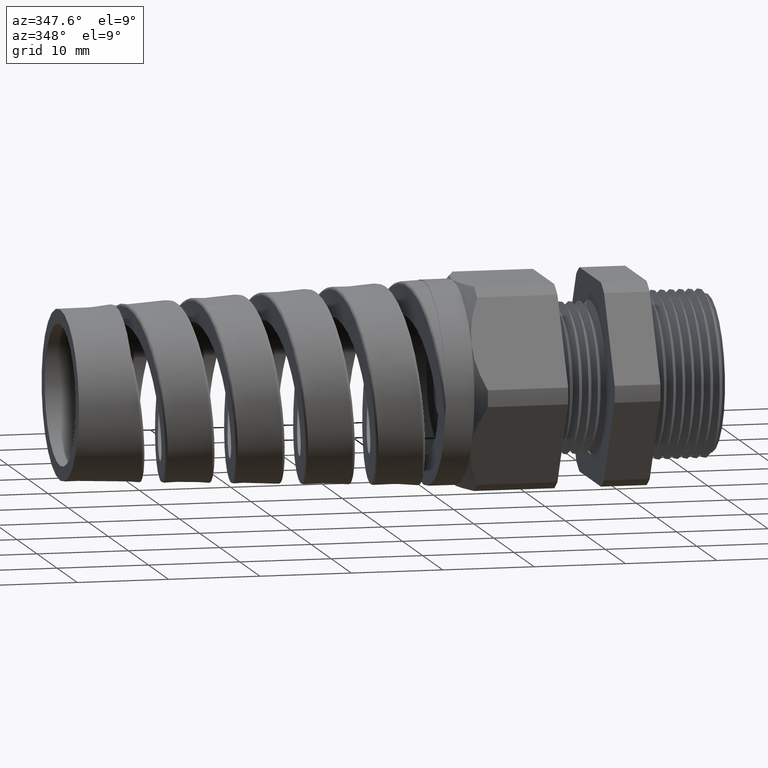
[diagram: clean part render]
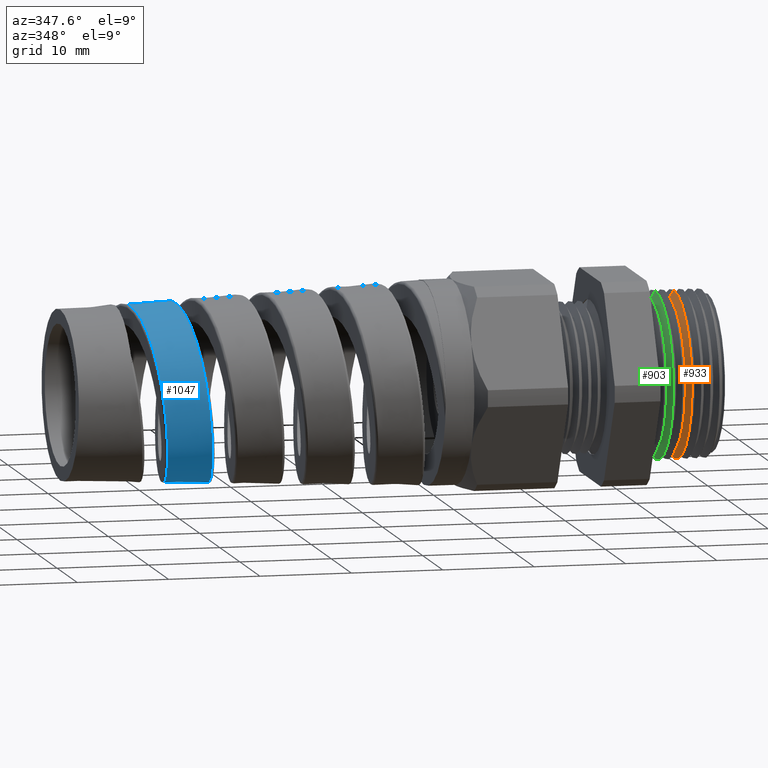
[diagram: same view with three faces highlighted in distinct colors, each labeled with its STEP entity id]
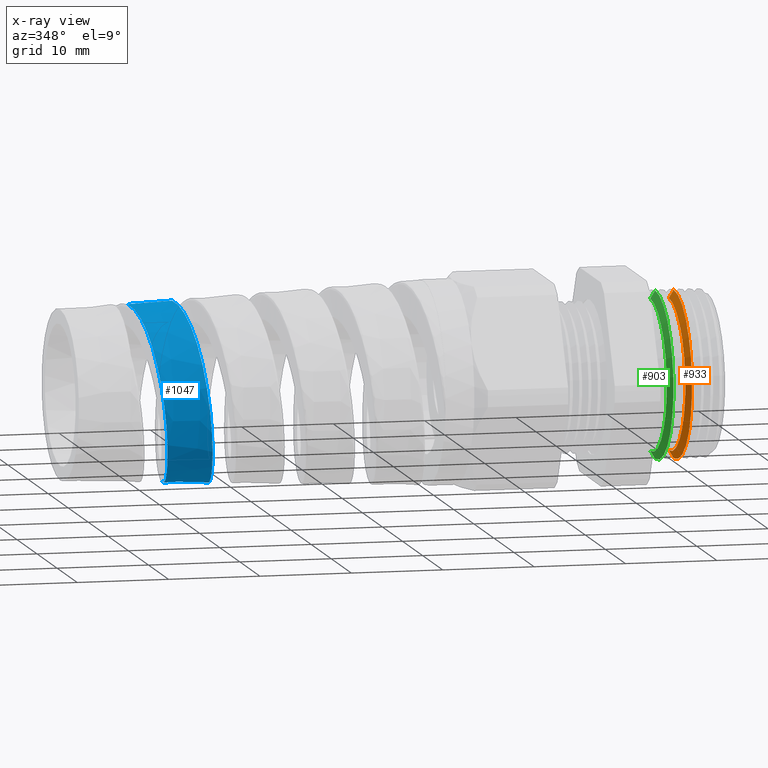
[diagram: x-ray of the same camera — body ghosted, the three highlighted faces saturated]
A machine part, auxiliary view with three faces highlighted in distinct colors.
The next image is the same camera in x-ray (body ghosted, the three faces saturated) — at least one of them is partly hidden behind the body in this view.
Their STEP definitions:

[orange] entity #933 — the highlighted conical surface has half-angle 58.5 deg.
#607 = VERTEX_POINT ( 'NONE', #2376 ) ;
#660 = EDGE_CURVE ( 'NONE', #9517, #607, #2317, .T. ) ;
#661 = VERTEX_POINT ( 'NONE', #2313 ) ;
#662 = EDGE_CURVE ( 'NONE', #661, #9642, #2312, .T. ) ;
#933 = ADVANCED_FACE ( 'NONE', ( #3856 ), #3851, .T. ) ;
#934 = EDGE_LOOP ( 'NONE', ( #935, #936, #937, #938 ) ) ;
#935 = ORIENTED_EDGE ( 'NONE', *, *, #662, .F. ) ;
#936 = ORIENTED_EDGE ( 'NONE', *, *, #954, .T. ) ;
#937 = ORIENTED_EDGE ( 'NONE', *, *, #660, .T. ) ;
#938 = ORIENTED_EDGE ( 'NONE', *, *, #939, .T. ) ;
#939 = EDGE_CURVE ( 'NONE', #607, #9642, #3845, .T. ) ;
#954 = EDGE_CURVE ( 'NONE', #661, #9517, #3880, .T. ) ;
#2309 = DIRECTION ( 'NONE',  ( 0.5224985647159468000, 1.044183048100713800E-016, 0.8526401643540935100 ) ) ;
#2310 = VECTOR ( 'NONE', #2309, 39.37007874015748100 ) ;
#2311 = CARTESIAN_POINT ( 'NONE',  ( -0.1679609809054343800, 3.972866593390776800E-017, 0.3244091762748934100 ) ) ;
#2312 = LINE ( 'NONE', #2311, #2310 ) ;
#2313 = CARTESIAN_POINT ( 'NONE',  ( -0.1679609809054343800, 0.0000000000000000000, 0.3244091762748934100 ) ) ;
#2314 = DIRECTION ( 'NONE',  ( 0.5224985647159468000, 0.0000000000000000000, -0.8526401643540935100 ) ) ;
#2315 = VECTOR ( 'NONE', #2314, 39.37007874015748100 ) ;
#2316 = CARTESIAN_POINT ( 'NONE',  ( -0.1679609809054343800, 0.0000000000000000000, -0.3244091762748934100 ) ) ;
#2317 = LINE ( 'NONE', #2316, #2315 ) ;
#2376 = CARTESIAN_POINT ( 'NONE',  ( -0.1467523337684279400, 0.0000000000000000000, -0.3590185428871367500 ) ) ;
#3844 = AXIS2_PLACEMENT_3D ( 'NONE', #3850, #3905, #3904 ) ;
#3845 = CIRCLE ( 'NONE', #3844, 0.3590185428871367500 ) ;
#3846 = DIRECTION ( 'NONE',  ( 0.0000000000000000000, 0.0000000000000000000, -1.000000000000000000 ) ) ;
#3847 = DIRECTION ( 'NONE',  ( 1.000000000000000000, 0.0000000000000000000, 0.0000000000000000000 ) ) ;
#3848 = CARTESIAN_POINT ( 'NONE',  ( -0.1679609809054343800, 0.0000000000000000000, 0.0000000000000000000 ) ) ;
#3849 = AXIS2_PLACEMENT_3D ( 'NONE', #3848, #3847, #3846 ) ;
#3850 = CARTESIAN_POINT ( 'NONE',  ( -0.1467523337684279400, 0.0000000000000000000, 0.0000000000000000000 ) ) ;
#3851 = CONICAL_SURFACE ( 'NONE', #3849, 0.3244091762748934100, 1.021017612416685200 ) ;
#3856 = FACE_OUTER_BOUND ( 'NONE', #934, .T. ) ;
#3877 = DIRECTION ( 'NONE',  ( 0.0000000000000000000, 0.0000000000000000000, -1.000000000000000000 ) ) ;
#3878 = DIRECTION ( 'NONE',  ( 1.000000000000000000, 0.0000000000000000000, 0.0000000000000000000 ) ) ;
#3879 = AXIS2_PLACEMENT_3D ( 'NONE', #3885, #3878, #3877 ) ;
#3880 = CIRCLE ( 'NONE', #3879, 0.3244091762748934100 ) ;
#3885 = CARTESIAN_POINT ( 'NONE',  ( -0.1679609809054343800, 0.0000000000000000000, 0.0000000000000000000 ) ) ;
#3904 = DIRECTION ( 'NONE',  ( 0.0000000000000000000, 0.0000000000000000000, 1.000000000000000000 ) ) ;
#3905 = DIRECTION ( 'NONE',  ( -1.000000000000000000, 0.0000000000000000000, 0.0000000000000000000 ) ) ;
#8441 = CARTESIAN_POINT ( 'NONE',  ( -0.1679609809054343800, 4.184787843601782100E-017, -0.3244091762748934100 ) ) ;
#8512 = CARTESIAN_POINT ( 'NONE',  ( -0.1467523337684279400, 4.396709093812787400E-017, 0.3590185428871367500 ) ) ;
#9517 = VERTEX_POINT ( 'NONE', #8441 ) ;
#9642 = VERTEX_POINT ( 'NONE', #8512 ) ;

[blue] entity #1047 — the highlighted conical surface has half-angle 2.5 deg.
#1015 = EDGE_CURVE ( 'NONE', #9447, #1016, #4032, .T. ) ;
#1016 = VERTEX_POINT ( 'NONE', #4023 ) ;
#1047 = ADVANCED_FACE ( 'NONE', ( #4113 ), #4112, .T. ) ;
#1048 = EDGE_LOOP ( 'NONE', ( #1049, #1103, #1105, #1106 ) ) ;
#1049 = ORIENTED_EDGE ( 'NONE', *, *, #1015, .F. ) ;
#1050 = VERTEX_POINT ( 'NONE', #4190 ) ;
#1053 = EDGE_CURVE ( 'NONE', #1069, #1050, #4189, .T. ) ;
#1069 = VERTEX_POINT ( 'NONE', #4313 ) ;
#1103 = ORIENTED_EDGE ( 'NONE', *, *, #1104, .T. ) ;
#1104 = EDGE_CURVE ( 'NONE', #9447, #1069, #4489, .T. ) ;
#1105 = ORIENTED_EDGE ( 'NONE', *, *, #1053, .T. ) ;
#1106 = ORIENTED_EDGE ( 'NONE', *, *, #1107, .T. ) ;
#1107 = EDGE_CURVE ( 'NONE', #1050, #1016, #4517, .T. ) ;
#4023 = CARTESIAN_POINT ( 'NONE',  ( -2.308126915499699300, -1.272983100170461000E-013, 0.3857449151488113700 ) ) ;
#4024 = DIRECTION ( 'NONE',  ( 0.9990482215818576900, 5.341834311772757900E-018, 0.04361938736533628500 ) ) ;
#4025 = VECTOR ( 'NONE', #4024, 39.37007874015748100 ) ;
#4026 = CARTESIAN_POINT ( 'NONE',  ( -1.179999999999999900, 5.327213576290984500E-017, 0.4349999999999998900 ) ) ;
#4032 = LINE ( 'NONE', #4026, #4025 ) ;
#4111 = CARTESIAN_POINT ( 'NONE',  ( -1.179999999999999900, 0.0000000000000000000, 0.0000000000000000000 ) ) ;
#4112 = CONICAL_SURFACE ( 'NONE', #4193, 0.4349999999999998900, 0.04363323129985852100 ) ;
#4113 = FACE_OUTER_BOUND ( 'NONE', #1048, .T. ) ;
#4182 = CARTESIAN_POINT ( 'NONE',  ( -2.417156999708259100, -0.3756764425403929000, -0.06460039985988448600 ) ) ;
#4184 = CARTESIAN_POINT ( 'NONE',  ( -2.418734540374347700, -0.3775358478719866300, -0.05213995987675463400 ) ) ;
#4185 = CARTESIAN_POINT ( 'NONE',  ( -2.421858213656323600, -0.3799999040365358300, -0.02735110408975426400 ) ) ;
#4186 = DIRECTION ( 'NONE',  ( 0.9990482215818576900, 0.0000000000000000000, -0.04361938736533628500 ) ) ;
#4187 = VECTOR ( 'NONE', #4186, 39.37007874015748100 ) ;
#4188 = CARTESIAN_POINT ( 'NONE',  ( -1.179999999999999900, 0.0000000000000000000, -0.4349999999999998900 ) ) ;
#4189 = LINE ( 'NONE', #4188, #4187 ) ;
#4190 = CARTESIAN_POINT ( 'NONE',  ( -2.158169936233277100, -4.573703540145218800E-013, -0.3922921782592955800 ) ) ;
#4191 = DIRECTION ( 'NONE',  ( 0.0000000000000000000, 0.0000000000000000000, -1.000000000000000000 ) ) ;
#4192 = DIRECTION ( 'NONE',  ( 1.000000000000000000, 0.0000000000000000000, 0.0000000000000000000 ) ) ;
#4193 = AXIS2_PLACEMENT_3D ( 'NONE', #4111, #4192, #4191 ) ;
#4313 = CARTESIAN_POINT ( 'NONE',  ( -2.350268408319590800, -6.787192805161690700E-013, -0.3839049778367226200 ) ) ;
#4463 = CARTESIAN_POINT ( 'NONE',  ( -2.424967585954633400, -0.3812389313763331900, -0.002560644524528435800 ) ) ;
#4464 = CARTESIAN_POINT ( 'NONE',  ( -2.428078476210308700, -0.3800618760320848600, 0.02222923065388017100 ) ) ;
#4465 = CARTESIAN_POINT ( 'NONE',  ( -2.431205043631993000, -0.3776595157989221000, 0.04701692997065716500 ) ) ;
#4466 = CARTESIAN_POINT ( 'NONE',  ( -2.432784452543962600, -0.3758317443352676700, 0.05947425317830141300 ) ) ;
#4467 = CARTESIAN_POINT ( 'NONE',  ( -2.437504863829109200, -0.3685375778842288100, 0.09633629504643054200 ) ) ;
#4468 = CARTESIAN_POINT ( 'NONE',  ( -2.440608550733902100, -0.3613379815035928100, 0.1200875390741039700 ) ) ;
#4469 = CARTESIAN_POINT ( 'NONE',  ( -2.445289571894623000, -0.3471286483914315900, 0.1545009313882437800 ) ) ;
#4470 = CARTESIAN_POINT ( 'NONE',  ( -2.446854058805441000, -0.3418198578925610900, 0.1657684025790830400 ) ) ;
#4471 = CARTESIAN_POINT ( 'NONE',  ( -2.450007079612729600, -0.3300239668902220600, 0.1878819846392964800 ) ) ;
#4472 = CARTESIAN_POINT ( 'NONE',  ( -2.451588416511171400, -0.3235579804295204400, 0.1986735835575302300 ) ) ;
#4473 = CARTESIAN_POINT ( 'NONE',  ( -2.456289658988311400, -0.3028141757758115400, 0.2297250768584507300 ) ) ;
#4474 = CARTESIAN_POINT ( 'NONE',  ( -2.459397098050756500, -0.2870903998229126200, 0.2488925564072453400 ) ) ;
#4475 = CARTESIAN_POINT ( 'NONE',  ( -2.464107313899227800, -0.2606582885499305100, 0.2753252473103638400 ) ) ;
#4476 = CARTESIAN_POINT ( 'NONE',  ( -2.465694465424044700, -0.2513137699745308100, 0.2837902487634315100 ) ) ;
#4477 = CARTESIAN_POINT ( 'NONE',  ( -2.468849261932763100, -0.2319544600279282400, 0.2996469469776535900 ) ) ;
#4478 = CARTESIAN_POINT ( 'NONE',  ( -2.470416497498641600, -0.2219484657016812800, 0.3070432009674770000 ) ) ;
#4479 = CARTESIAN_POINT ( 'NONE',  ( -2.475111073668913300, -0.1909783774304279200, 0.3276740788457347400 ) ) ;
#4480 = CARTESIAN_POINT ( 'NONE',  ( -2.478230573729416800, -0.1690712556458539600, 0.3393658609619044100 ) ) ;
#4481 = CARTESIAN_POINT ( 'NONE',  ( -2.482984366570308900, -0.1342617192594260900, 0.3536930275737568700 ) ) ;
#4482 = CARTESIAN_POINT ( 'NONE',  ( -2.484567387974747600, -0.1224340662482690800, 0.3578824675646549200 ) ) ;
#4483 = CARTESIAN_POINT ( 'NONE',  ( -2.487710256714027700, -0.09860597063419306000, 0.3650247832951113400 ) ) ;
#4484 = CARTESIAN_POINT ( 'NONE',  ( -2.490841066607866900, -0.07452350290695959600, 0.3709645657247112600 ) ) ;
#4485 = CARTESIAN_POINT ( 'NONE',  ( -2.493978427880896700, -0.04994091084740420700, 0.3745213475607168100 ) ) ;
#4486 = CARTESIAN_POINT ( 'NONE',  ( -2.497134287363027600, -0.02510534552086198700, 0.3768633827062840000 ) ) ;
#4487 = CARTESIAN_POINT ( 'NONE',  ( -2.498729809893248400, -0.01249510076067797200, 0.3774230130584974000 ) ) ;
#4488 = CARTESIAN_POINT ( 'NONE',  ( -2.500311289091241600, 1.421113445988674600E-017, 0.3773539641855228100 ) ) ;
#4489 = B_SPLINE_CURVE_WITH_KNOTS ( 'NONE', 3,
 ( #4488, #4487, #4486, #4485, #4484, #4483, #4482, #4481, #4480, #4479, #4478, #4477, #4476, #4475, #4474, #4473, #4472, #4471, #4470, #4469, #4468, #4467, #4466, #4465, #4464, #4463, #4185, #4184, #4182, #4540, #4539, #4538, #4537, #4536, #4535, #4534, #4533, #4532, #4531, #4530, #4529, #4528, #4527, #4526, #4525, #4524, #4523, #4522, #4521, #4520, #4519 ),
 .UNSPECIFIED., .F., .F.,
 ( 4, 2, 1, 2, 2, 2, 2, 2, 2, 2, 2, 2, 2, 1, 2, 2, 2, 2, 2, 2, 2, 2, 2, 2, 1, 2, 4 ),
 ( 0.01085346515800519500, 0.01181697567071559500, 0.01278048618342599200, 0.01374399669613638900, 0.01470750720884678900, 0.01663452823426758000, 0.01759803874697797900, 0.01856154925968837500, 0.02048857028510917000, 0.02145208079781956900, 0.02241559131052996800, 0.02434261233595076000, 0.02530612284866115600, 0.02626963336137155100, 0.02723314387408194700, 0.02819665438679234300, 0.03012367541221313100, 0.03108718592492352300, 0.03205069643763391900, 0.03397771746305469600, 0.03494122797576509200, 0.03590473848847548800, 0.03783175951389627200, 0.03879527002660666800, 0.03975878053931705700, 0.04072229105202744600, 0.04168580156473783400 ),
 .UNSPECIFIED. ) ;
#4502 = CARTESIAN_POINT ( 'NONE',  ( -2.207871856065167100, -0.3368705784083407300, -0.1971718266856402300 ) ) ;
#4503 = CARTESIAN_POINT ( 'NONE',  ( -2.206318545611063900, -0.3303272701985828200, -0.2080691889160415600 ) ) ;
#4504 = CARTESIAN_POINT ( 'NONE',  ( -2.201666574912224000, -0.3091934298598251800, -0.2396850278893366800 ) ) ;
#4505 = CARTESIAN_POINT ( 'NONE',  ( -2.198577062284057200, -0.2931131353497551900, -0.2593375762202631600 ) ) ;
#4506 = CARTESIAN_POINT ( 'NONE',  ( -2.192303469233843700, -0.2568300342508006400, -0.2956748837656204600 ) ) ;
#4507 = CARTESIAN_POINT ( 'NONE',  ( -2.189207630395853400, -0.2371333867472471000, -0.3118362058148542200 ) ) ;
#4508 = CARTESIAN_POINT ( 'NONE',  ( -2.184567451163682800, -0.2055603043210000600, -0.3330101353420147900 ) ) ;
#4509 = CARTESIAN_POINT ( 'NONE',  ( -2.183019645714226800, -0.1946847752485340900, -0.3395637854956383700 ) ) ;
#4510 = CARTESIAN_POINT ( 'NONE',  ( -2.179907583554167700, -0.1722196359618603000, -0.3516425068030973300 ) ) ;
#4511 = CARTESIAN_POINT ( 'NONE',  ( -2.178335667851159000, -0.1605687281657084400, -0.3571889370120102700 ) ) ;
#4512 = CARTESIAN_POINT ( 'NONE',  ( -2.173663998700099400, -0.1252060943047823600, -0.3719391734510849000 ) ) ;
#4513 = CARTESIAN_POINT ( 'NONE',  ( -2.170589668492991700, -0.1009656527040438100, -0.3793664552942095400 ) ) ;
#4514 = CARTESIAN_POINT ( 'NONE',  ( -2.164403424709672800, -0.05119191871380295000, -0.3894920435408376100 ) ) ;
#4515 = CARTESIAN_POINT ( 'NONE',  ( -2.161262768218582800, -0.02541625065391480900, -0.3921571422985299400 ) ) ;
#4516 = CARTESIAN_POINT ( 'NONE',  ( -2.158169936233277100, -4.573703540145218800E-013, -0.3922921782592955800 ) ) ;
#4517 = B_SPLINE_CURVE_WITH_KNOTS ( 'NONE', 3,
 ( #4516, #4515, #4514, #4513, #4512, #4511, #4510, #4509, #4508, #4507, #4506, #4505, #4504, #4503, #4502, #4576, #4575, #4574, #4573, #4572, #4571, #4570, #4569, #4568, #4567, #4566, #4565, #4564, #4563, #4562, #4561, #4560, #4559, #4558, #4557, #4556, #4555, #4554, #4553, #4552, #4551, #4550, #4549, #4548, #4547 ),
 .UNSPECIFIED., .F., .F.,
 ( 4, 2, 2, 2, 2, 2, 2, 2, 2, 2, 2, 2, 2, 1, 2, 2, 2, 2, 2, 2, 2, 2, 4 ),
 ( 0.2032266433234103700, 0.2051723856746904000, 0.2071181280259704300, 0.2080909992016104500, 0.2090638703772504700, 0.2110096127285305000, 0.2129553550798105600, 0.2139282262554505800, 0.2149010974310905900, 0.2168468397823706300, 0.2187925821336506600, 0.2207383244849306900, 0.2217111956605707400, 0.2226840668362107500, 0.2236569380118507700, 0.2246298091874907900, 0.2265755515387708200, 0.2275484227144108400, 0.2285212938900508500, 0.2304670362413308900, 0.2314399074169709300, 0.2324127785926109500, 0.2343585209438909800 ),
 .UNSPECIFIED. ) ;
#4519 = CARTESIAN_POINT ( 'NONE',  ( -2.350268408319590800, -6.787192805161690700E-013, -0.3839049778367226200 ) ) ;
#4520 = CARTESIAN_POINT ( 'NONE',  ( -2.351825155565627800, -0.01251339948142104700, -0.3838370087840686200 ) ) ;
#4521 = CARTESIAN_POINT ( 'NONE',  ( -2.353392417132373500, -0.02510406272131053900, -0.3831493448892723800 ) ) ;
#4522 = CARTESIAN_POINT ( 'NONE',  ( -2.356494683330828500, -0.04989626503485919400, -0.3805785783044736700 ) ) ;
#4523 = CARTESIAN_POINT ( 'NONE',  ( -2.359582031866642700, -0.07443910757353003300, -0.3768156577105428700 ) ) ;
#4524 = CARTESIAN_POINT ( 'NONE',  ( -2.362669002296042800, -0.09848732420862832400, -0.3707057260667202000 ) ) ;
#4525 = CARTESIAN_POINT ( 'NONE',  ( -2.365770411955034900, -0.1222833705358529100, -0.3634081192215135600 ) ) ;
#4526 = CARTESIAN_POINT ( 'NONE',  ( -2.367335114572351400, -0.1341053556254616600, -0.3591440534942692000 ) ) ;
#4527 = CARTESIAN_POINT ( 'NONE',  ( -2.372025754337181400, -0.1688203633606442100, -0.3446494046142544200 ) ) ;
#4528 = CARTESIAN_POINT ( 'NONE',  ( -2.375107957671545500, -0.1906818168540684300, -0.3328777289250545200 ) ) ;
#4529 = CARTESIAN_POINT ( 'NONE',  ( -2.379752418263278500, -0.2216004662231663700, -0.3121593012317334700 ) ) ;
#4530 = CARTESIAN_POINT ( 'NONE',  ( -2.381303973572550500, -0.2315922464994593600, -0.3047394072288590100 ) ) ;
#4531 = CARTESIAN_POINT ( 'NONE',  ( -2.384429181686458700, -0.2509283538286691800, -0.2888453864959001400 ) ) ;
#4532 = CARTESIAN_POINT ( 'NONE',  ( -2.386001930648137000, -0.2602609038636279900, -0.2803695465068528100 ) ) ;
#4533 = CARTESIAN_POINT ( 'NONE',  ( -2.390672623399099800, -0.2866710779675876200, -0.2539141504772147200 ) ) ;
#4534 = CARTESIAN_POINT ( 'NONE',  ( -2.393757337674322600, -0.3023953402631947000, -0.2347455905399890000 ) ) ;
#4535 = CARTESIAN_POINT ( 'NONE',  ( -2.398427308819028900, -0.3231573266473890000, -0.2037087926782630600 ) ) ;
#4536 = CARTESIAN_POINT ( 'NONE',  ( -2.399998489127874300, -0.3296312100482483000, -0.1929274918673131200 ) ) ;
#4537 = CARTESIAN_POINT ( 'NONE',  ( -2.403135267958347300, -0.3414572440480614400, -0.1708220141855673300 ) ) ;
#4538 = CARTESIAN_POINT ( 'NONE',  ( -2.404692597873026000, -0.3467836613560043000, -0.1595598592925298300 ) ) ;
#4539 = CARTESIAN_POINT ( 'NONE',  ( -2.409354599986523100, -0.3610522257549583800, -0.1251656521127647900 ) ) ;
#4540 = CARTESIAN_POINT ( 'NONE',  ( -2.412449036250529300, -0.3682996406248390500, -0.1014314800489572500 ) ) ;
#4547 = CARTESIAN_POINT ( 'NONE',  ( -2.308126915499699300, -1.272983100170461000E-013, 0.3857449151488113700 ) ) ;
#4548 = CARTESIAN_POINT ( 'NONE',  ( -2.304954613847781000, -0.02563472337468838300, 0.3858834208301159000 ) ) ;
#4549 = CARTESIAN_POINT ( 'NONE',  ( -2.301832076179605400, -0.05089747520560796600, 0.3834891445753028100 ) ) ;
#4550 = CARTESIAN_POINT ( 'NONE',  ( -2.297130156393620800, -0.08824066283320634900, 0.3762235727910185900 ) ) ;
#4551 = CARTESIAN_POINT ( 'NONE',  ( -2.295559926689072100, -0.1005959169860918800, 0.3731849112468997900 ) ) ;
#4552 = CARTESIAN_POINT ( 'NONE',  ( -2.292397827836349900, -0.1251145484827387300, 0.3658408791709107400 ) ) ;
#4553 = CARTESIAN_POINT ( 'NONE',  ( -2.290809167527700900, -0.1372498934326123700, 0.3615349985021624700 ) ) ;
#4554 = CARTESIAN_POINT ( 'NONE',  ( -2.286092866369495700, -0.1725668145503990700, 0.3470030837765519200 ) ) ;
#4555 = CARTESIAN_POINT ( 'NONE',  ( -2.282980938178774000, -0.1949391495554733400, 0.3351033498615139700 ) ) ;
#4556 = CARTESIAN_POINT ( 'NONE',  ( -2.278270982474972900, -0.2267312861753864600, 0.3139450119610993100 ) ) ;
#4557 = CARTESIAN_POINT ( 'NONE',  ( -2.276685403251347100, -0.2370853866382236800, 0.3062913848491342600 ) ) ;
#4558 = CARTESIAN_POINT ( 'NONE',  ( -2.273530103376375100, -0.2568855870287898300, 0.2900695923683461200 ) ) ;
#4559 = CARTESIAN_POINT ( 'NONE',  ( -2.271963799596657300, -0.2663149723307302000, 0.2815260315923489000 ) ) ;
#4560 = CARTESIAN_POINT ( 'NONE',  ( -2.267275617430262200, -0.2932279273843567700, 0.2546350748968653800 ) ) ;
#4561 = CARTESIAN_POINT ( 'NONE',  ( -2.264165388941613300, -0.3093494061585748100, 0.2350392472272959100 ) ) ;
#4562 = CARTESIAN_POINT ( 'NONE',  ( -2.259433648396086600, -0.3307097064844329900, 0.2030742530043785900 ) ) ;
#4563 = CARTESIAN_POINT ( 'NONE',  ( -2.257854800387350200, -0.3373071184355645500, 0.1920495223791962000 ) ) ;
#4564 = CARTESIAN_POINT ( 'NONE',  ( -2.254725637483912400, -0.3492837327597759800, 0.1696054429560014700 ) ) ;
#4565 = CARTESIAN_POINT ( 'NONE',  ( -2.251610843545315700, -0.3601072415844742700, 0.1466713732695209300 ) ) ;
#4566 = CARTESIAN_POINT ( 'NONE',  ( -2.248494488603289800, -0.3686512620194077300, 0.1227726987920940300 ) ) ;
#4567 = CARTESIAN_POINT ( 'NONE',  ( -2.245362679777736400, -0.3760364150396607900, 0.09838559654074628700 ) ) ;
#4568 = CARTESIAN_POINT ( 'NONE',  ( -2.243780361878706700, -0.3791610655158217900, 0.08587674131073766400 ) ) ;
#4569 = CARTESIAN_POINT ( 'NONE',  ( -2.239069496612173800, -0.3866006144434214800, 0.04825056025861357300 ) ) ;
#4570 = CARTESIAN_POINT ( 'NONE',  ( -2.235972075975566600, -0.3890429439534168800, 0.02301065197745590400 ) ) ;
#4571 = CARTESIAN_POINT ( 'NONE',  ( -2.229743482589411100, -0.3890050388211163100, -0.02775920200527600900 ) ) ;
#4572 = CARTESIAN_POINT ( 'NONE',  ( -2.226580892710606600, -0.3864434018396310000, -0.05354050860861995400 ) ) ;
#4573 = CARTESIAN_POINT ( 'NONE',  ( -2.220347248647956700, -0.3764633382686827800, -0.1034042060802157900 ) ) ;
#4574 = CARTESIAN_POINT ( 'NONE',  ( -2.217257836702473100, -0.3690941970037194800, -0.1276528895412383800 ) ) ;
#4575 = CARTESIAN_POINT ( 'NONE',  ( -2.212575731403257300, -0.3544490013126600500, -0.1629831636825149800 ) ) ;
#4576 = CARTESIAN_POINT ( 'NONE',  ( -2.210998674309432300, -0.3489292190664110600, -0.1746436822071814600 ) ) ;
#8254 = CARTESIAN_POINT ( 'NONE',  ( -2.500311289091241600, 1.421113445988674600E-017, 0.3773539641855228100 ) ) ;
#9447 = VERTEX_POINT ( 'NONE', #8254 ) ;

[green] entity #903 — the highlighted conical surface has half-angle 58.5 deg.
#900 = EDGE_CURVE ( 'NONE', #9287, #9288, #3831, .T. ) ;
#903 = ADVANCED_FACE ( 'NONE', ( #3822 ), #3821, .T. ) ;
#904 = EDGE_LOOP ( 'NONE', ( #905, #906, #957, #958 ) ) ;
#905 = ORIENTED_EDGE ( 'NONE', *, *, #9550, .F. ) ;
#906 = ORIENTED_EDGE ( 'NONE', *, *, #900, .T. ) ;
#957 = ORIENTED_EDGE ( 'NONE', *, *, #9289, .T. ) ;
#958 = ORIENTED_EDGE ( 'NONE', *, *, #959, .T. ) ;
#959 = EDGE_CURVE ( 'NONE', #9664, #9661, #2259, .T. ) ;
#2254 = CARTESIAN_POINT ( 'NONE',  ( -0.2267523337684279600, 0.0000000000000000000, 0.0000000000000000000 ) ) ;
#2259 = CIRCLE ( 'NONE', #3619, 0.3590185428871366400 ) ;
#3619 = AXIS2_PLACEMENT_3D ( 'NONE', #2254, #3941, #3940 ) ;
#3816 = DIRECTION ( 'NONE',  ( 0.0000000000000000000, 0.0000000000000000000, -1.000000000000000000 ) ) ;
#3817 = DIRECTION ( 'NONE',  ( 1.000000000000000000, 0.0000000000000000000, 0.0000000000000000000 ) ) ;
#3818 = CARTESIAN_POINT ( 'NONE',  ( -0.2479609809054343400, 0.0000000000000000000, 0.0000000000000000000 ) ) ;
#3819 = AXIS2_PLACEMENT_3D ( 'NONE', #3818, #3817, #3816 ) ;
#3821 = CONICAL_SURFACE ( 'NONE', #3819, 0.3244091762748934100, 1.021017612416685200 ) ;
#3822 = FACE_OUTER_BOUND ( 'NONE', #904, .T. ) ;
#3823 = DIRECTION ( 'NONE',  ( 0.0000000000000000000, 0.0000000000000000000, -1.000000000000000000 ) ) ;
#3824 = DIRECTION ( 'NONE',  ( 1.000000000000000000, 0.0000000000000000000, 0.0000000000000000000 ) ) ;
#3825 = CARTESIAN_POINT ( 'NONE',  ( -0.2479609809054343400, 0.0000000000000000000, 0.0000000000000000000 ) ) ;
#3826 = AXIS2_PLACEMENT_3D ( 'NONE', #3825, #3824, #3823 ) ;
#3831 = CIRCLE ( 'NONE', #3826, 0.3244091762748934100 ) ;
#3940 = DIRECTION ( 'NONE',  ( 0.0000000000000000000, 0.0000000000000000000, 1.000000000000000000 ) ) ;
#3941 = DIRECTION ( 'NONE',  ( -1.000000000000000000, 0.0000000000000000000, 0.0000000000000000000 ) ) ;
#6736 = DIRECTION ( 'NONE',  ( 0.5224985647159468000, 0.0000000000000000000, -0.8526401643540935100 ) ) ;
#6737 = VECTOR ( 'NONE', #6736, 39.37007874015748100 ) ;
#6738 = CARTESIAN_POINT ( 'NONE',  ( -0.2479609809054343400, 0.0000000000000000000, -0.3244091762748934100 ) ) ;
#6739 = LINE ( 'NONE', #6738, #6737 ) ;
#6740 = CARTESIAN_POINT ( 'NONE',  ( -0.2479609809054343400, 4.184787843601782100E-017, -0.3244091762748934100 ) ) ;
#6741 = CARTESIAN_POINT ( 'NONE',  ( -0.2479609809054343400, 0.0000000000000000000, 0.3244091762748934100 ) ) ;
#8492 = DIRECTION ( 'NONE',  ( 0.5224985647159468000, 1.044183048100713800E-016, 0.8526401643540935100 ) ) ;
#8493 = VECTOR ( 'NONE', #8492, 39.37007874015748100 ) ;
#8494 = CARTESIAN_POINT ( 'NONE',  ( -0.2479609809054343400, 3.972866593390776800E-017, 0.3244091762748934100 ) ) ;
#8495 = LINE ( 'NONE', #8494, #8493 ) ;
#8561 = CARTESIAN_POINT ( 'NONE',  ( -0.2267523337684279600, 0.0000000000000000000, -0.3590185428871366400 ) ) ;
#8562 = CARTESIAN_POINT ( 'NONE',  ( -0.2267523337684279600, 4.396709093812786200E-017, 0.3590185428871366400 ) ) ;
#9287 = VERTEX_POINT ( 'NONE', #6741 ) ;
#9288 = VERTEX_POINT ( 'NONE', #6740 ) ;
#9289 = EDGE_CURVE ( 'NONE', #9288, #9664, #6739, .T. ) ;
#9550 = EDGE_CURVE ( 'NONE', #9287, #9661, #8495, .T. ) ;
#9661 = VERTEX_POINT ( 'NONE', #8562 ) ;
#9664 = VERTEX_POINT ( 'NONE', #8561 ) ;